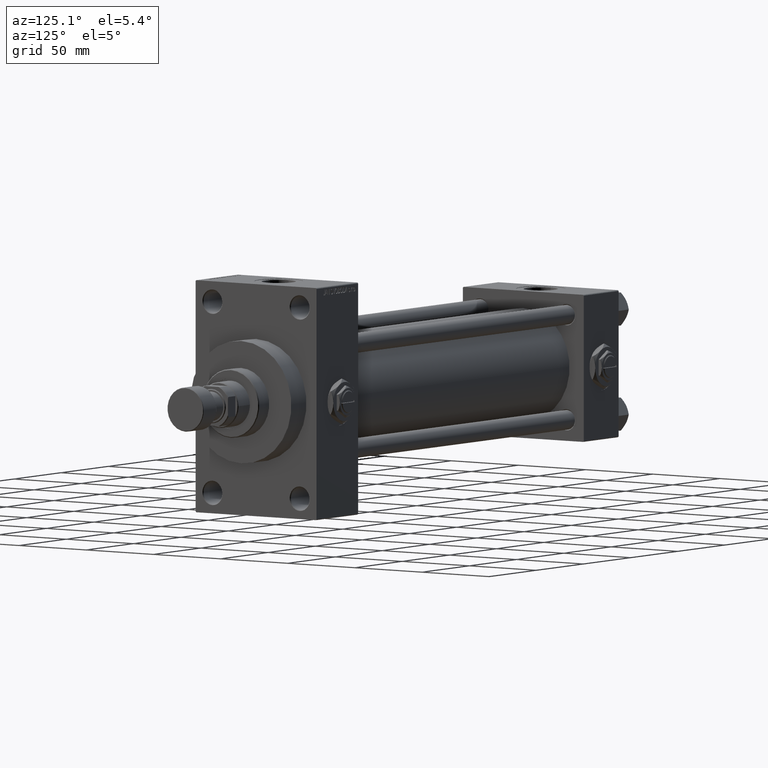
[diagram: clean part render]
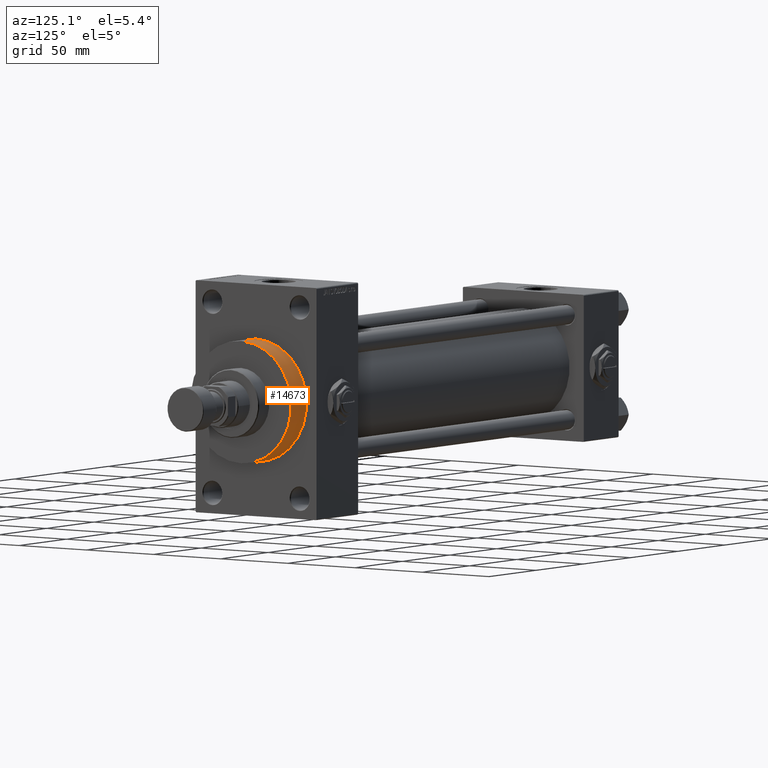
[diagram: same view with one face highlighted and labeled with its STEP entity id]
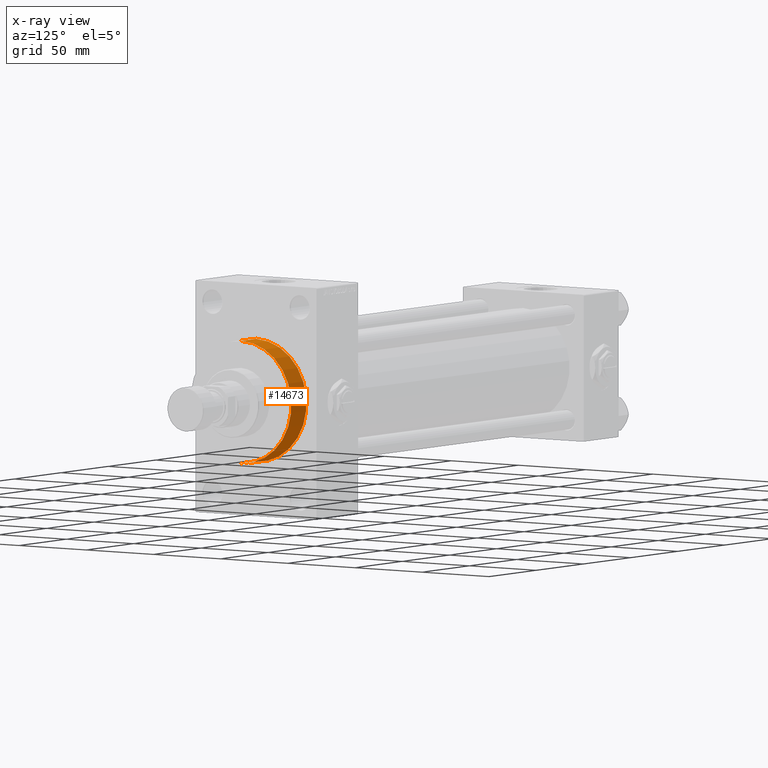
[diagram: x-ray of the same camera — body ghosted, the highlighted face saturated]
A machine part, auxiliary view. The second image highlights one B-rep face of the part: STEP entity #14673.
The next image is the same camera in x-ray: the body ghosted, the highlighted face saturated — about 0% of this face is hidden behind the body in this view.
In plain terms, the highlighted cylindrical surface (partial cylindrical patch) has radius 37.5 mm, axis along (-1, -0, -0).
Its self-contained STEP definition (entity closure, byte-faithful):
#1749 = VERTEX_POINT ( 'NONE', #16730 ) ;
#2103 = VERTEX_POINT ( 'NONE', #49572 ) ;
#2250 = DIRECTION ( 'NONE',  ( -1.000000000000000000, -0.000000000000000000, -0.000000000000000000 ) ) ;
#5764 = FACE_OUTER_BOUND ( 'NONE', #30395, .T. ) ;
#6120 = CARTESIAN_POINT ( 'NONE',  ( 319.9999999999999432, 4.592425496802575156E-15, -37.50000000000000711 ) ) ;
#7925 = VERTEX_POINT ( 'NONE', #19605 ) ;
#9525 = ORIENTED_EDGE ( 'NONE', *, *, #19056, .F. ) ;
#11863 = CIRCLE ( 'NONE', #23100, 37.50000000000000711 ) ;
#14673 = ADVANCED_FACE ( 'NONE', ( #5764 ), #21122, .T. ) ;
#16347 = AXIS2_PLACEMENT_3D ( 'NONE', #17353, #2250, #17598 ) ;
#16730 = CARTESIAN_POINT ( 'NONE',  ( 319.9999999999999432, 0.000000000000000000, 37.50000000000000711 ) ) ;
#17353 = CARTESIAN_POINT ( 'NONE',  ( 335.9999999999999432, 0.000000000000000000, 0.000000000000000000 ) ) ;
#17598 = DIRECTION ( 'NONE',  ( 0.000000000000000000, 0.000000000000000000, 1.000000000000000000 ) ) ;
#18145 = CARTESIAN_POINT ( 'NONE',  ( 319.9999999999999432, 0.000000000000000000, 0.000000000000000000 ) ) ;
#18386 = EDGE_CURVE ( 'NONE', #2103, #7925, #41397, .T. ) ;
#19056 = EDGE_CURVE ( 'NONE', #7925, #1749, #32558, .T. ) ;
#19330 = CARTESIAN_POINT ( 'NONE',  ( 335.9999999999999432, 4.592425496802575156E-15, -37.50000000000000711 ) ) ;
#19605 = CARTESIAN_POINT ( 'NONE',  ( 335.9999999999999432, 0.000000000000000000, 37.50000000000000711 ) ) ;
#19714 = AXIS2_PLACEMENT_3D ( 'NONE', #42443, #49242, #27072 ) ;
#21122 = CYLINDRICAL_SURFACE ( 'NONE', #16347, 37.50000000000000711 ) ;
#22153 = VECTOR ( 'NONE', #48634, 1000.000000000000000 ) ;
#23100 = AXIS2_PLACEMENT_3D ( 'NONE', #18145, #49074, #32744 ) ;
#25425 = ORIENTED_EDGE ( 'NONE', *, *, #18386, .F. ) ;
#25718 = CARTESIAN_POINT ( 'NONE',  ( 335.9999999999999432, 0.000000000000000000, 37.50000000000000711 ) ) ;
#26177 = EDGE_CURVE ( 'NONE', #36671, #1749, #11863, .T. ) ;
#26866 = LINE ( 'NONE', #19330, #37168 ) ;
#27072 = DIRECTION ( 'NONE',  ( 0.000000000000000000, 0.000000000000000000, -1.000000000000000000 ) ) ;
#30395 = EDGE_LOOP ( 'NONE', ( #25425, #38227, #32463, #9525 ) ) ;
#32463 = ORIENTED_EDGE ( 'NONE', *, *, #26177, .T. ) ;
#32558 = LINE ( 'NONE', #25718, #22153 ) ;
#32744 = DIRECTION ( 'NONE',  ( 0.000000000000000000, 0.000000000000000000, -1.000000000000000000 ) ) ;
#36671 = VERTEX_POINT ( 'NONE', #6120 ) ;
#37168 = VECTOR ( 'NONE', #42235, 1000.000000000000000 ) ;
#38227 = ORIENTED_EDGE ( 'NONE', *, *, #41519, .T. ) ;
#41397 = CIRCLE ( 'NONE', #19714, 37.50000000000000711 ) ;
#41519 = EDGE_CURVE ( 'NONE', #2103, #36671, #26866, .T. ) ;
#42235 = DIRECTION ( 'NONE',  ( -1.000000000000000000, -0.000000000000000000, -0.000000000000000000 ) ) ;
#42443 = CARTESIAN_POINT ( 'NONE',  ( 335.9999999999999432, 0.000000000000000000, 0.000000000000000000 ) ) ;
#48634 = DIRECTION ( 'NONE',  ( -1.000000000000000000, -0.000000000000000000, -0.000000000000000000 ) ) ;
#49074 = DIRECTION ( 'NONE',  ( 1.000000000000000000, 0.000000000000000000, 0.000000000000000000 ) ) ;
#49242 = DIRECTION ( 'NONE',  ( 1.000000000000000000, 0.000000000000000000, 0.000000000000000000 ) ) ;
#49572 = CARTESIAN_POINT ( 'NONE',  ( 335.9999999999999432, 4.592425496802575156E-15, -37.50000000000000711 ) ) ;